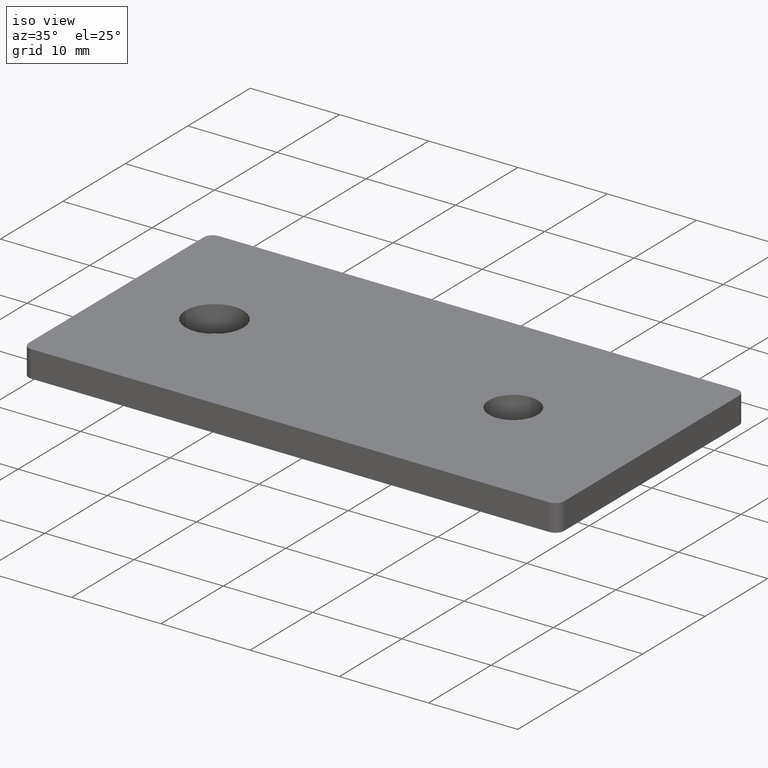
[diagram: clean part render]
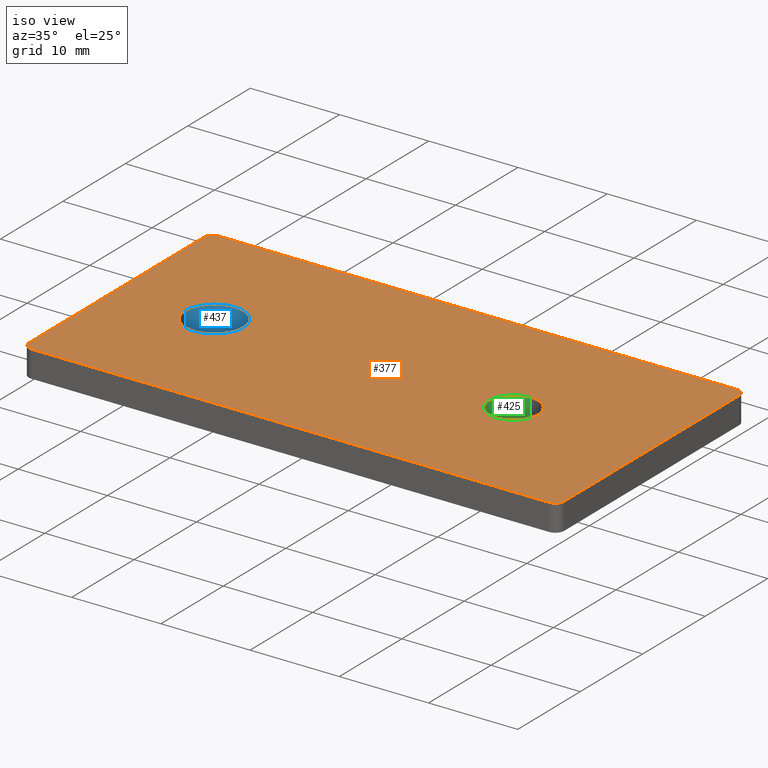
[diagram: same view with three faces highlighted in distinct colors, each labeled with its STEP entity id]
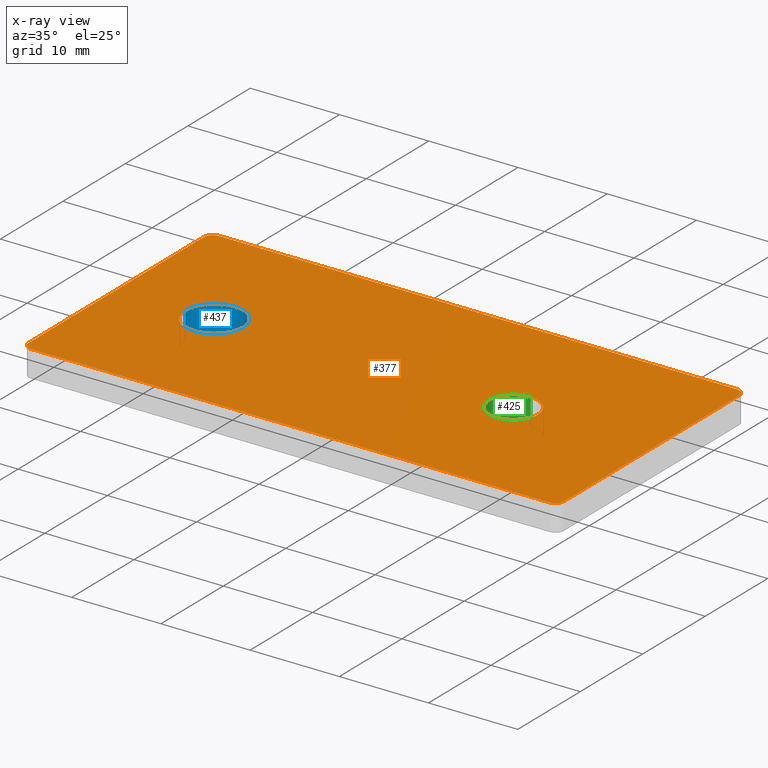
[diagram: x-ray of the same camera — body ghosted, the three highlighted faces saturated]
A machine part, iso view with three faces highlighted in distinct colors.
The next image is the same camera in x-ray (body ghosted, the three faces saturated) — at least one of them is partly hidden behind the body in this view.
Their STEP definitions:

[orange] entity #377 — the highlighted planar face has unit normal (0, 0, 1).
#18=CARTESIAN_POINT('',(-52.250000000000000,3.552714E-015,3.0));
#19=VERTEX_POINT('',#18);
#26=CARTESIAN_POINT('',(-45.750000000000000,3.552714E-015,3.0));
#27=VERTEX_POINT('',#26);
#28=CARTESIAN_POINT('',(-49.0,3.552714E-015,3.0));
#29=DIRECTION('',(0.0,0.0,1.0));
#30=DIRECTION('',(0.0,1.0,0.0));
#31=AXIS2_PLACEMENT_3D('',#28,#29,#30);
#32=CIRCLE('',#31,3.250000000000000);
#33=EDGE_CURVE('',#19,#27,#32,.T.);
#49=CARTESIAN_POINT('',(-15.500000000000004,2.750000000000000,3.0));
#50=VERTEX_POINT('',#49);
#51=CARTESIAN_POINT('',(-15.500000000000004,-2.749999999999996,3.0));
#52=VERTEX_POINT('',#51);
#53=CARTESIAN_POINT('',(-15.500000000000004,3.552714E-015,3.0));
#54=DIRECTION('',(0.0,0.0,-1.0));
#55=DIRECTION('',(0.0,-1.0,0.0));
#56=AXIS2_PLACEMENT_3D('',#53,#54,#55);
#57=CIRCLE('',#56,2.749999999999999);
#58=EDGE_CURVE('',#50,#52,#57,.T.);
#102=CARTESIAN_POINT('',(-59.0,-14.999999999999993,3.0));
#103=VERTEX_POINT('',#102);
#110=CARTESIAN_POINT('',(-60.0,-13.999999999999993,3.0));
#111=VERTEX_POINT('',#110);
#112=CARTESIAN_POINT('',(-59.0,-13.999999999999993,3.0));
#113=DIRECTION('',(0.0,0.0,1.0));
#114=DIRECTION('',(1.0,0.0,0.0));
#115=AXIS2_PLACEMENT_3D('',#112,#113,#114);
#116=CIRCLE('',#115,1.000000000000001);
#117=EDGE_CURVE('',#111,#103,#116,.T.);
#141=CARTESIAN_POINT('',(-1.0,-14.999999999999993,3.0));
#142=VERTEX_POINT('',#141);
#149=CARTESIAN_POINT('',(-59.0,-14.999999999999993,3.0));
#150=DIRECTION('',(1.0,0.0,0.0));
#151=VECTOR('',#150,58.0);
#152=LINE('',#149,#151);
#153=EDGE_CURVE('',#103,#142,#152,.T.);
#173=CARTESIAN_POINT('',(0.0,-13.999999999999993,3.0));
#174=VERTEX_POINT('',#173);
#181=CARTESIAN_POINT('',(-1.0,-13.999999999999993,3.0));
#182=DIRECTION('',(0.0,0.0,1.0));
#183=DIRECTION('',(-1.0,0.0,0.0));
#184=AXIS2_PLACEMENT_3D('',#181,#182,#183);
#185=CIRCLE('',#184,1.000000000000001);
#186=EDGE_CURVE('',#142,#174,#185,.T.);
#205=CARTESIAN_POINT('',(0.0,13.999999999999995,3.0));
#206=VERTEX_POINT('',#205);
#213=CARTESIAN_POINT('',(0.0,-13.999999999999993,3.0));
#214=DIRECTION('',(0.0,1.0,0.0));
#215=VECTOR('',#214,27.999999999999986);
#216=LINE('',#213,#215);
#217=EDGE_CURVE('',#174,#206,#216,.T.);
#237=CARTESIAN_POINT('',(-1.0,14.999999999999996,3.0));
#238=VERTEX_POINT('',#237);
#245=CARTESIAN_POINT('',(-1.0,13.999999999999996,3.0));
#246=DIRECTION('',(0.0,0.0,1.0));
#247=DIRECTION('',(-1.0,0.0,0.0));
#248=AXIS2_PLACEMENT_3D('',#245,#246,#247);
#249=CIRCLE('',#248,1.000000000000001);
#250=EDGE_CURVE('',#206,#238,#249,.T.);
#269=CARTESIAN_POINT('',(-59.0,14.999999999999996,3.0));
#270=VERTEX_POINT('',#269);
#277=CARTESIAN_POINT('',(-1.0,14.999999999999996,3.0));
#278=DIRECTION('',(-1.0,0.0,0.0));
#279=VECTOR('',#278,58.0);
#280=LINE('',#277,#279);
#281=EDGE_CURVE('',#238,#270,#280,.T.);
#301=CARTESIAN_POINT('',(-60.0,13.999999999999998,3.0));
#302=VERTEX_POINT('',#301);
#309=CARTESIAN_POINT('',(-59.0,13.999999999999996,3.0));
#310=DIRECTION('',(0.0,0.0,1.0));
#311=DIRECTION('',(1.0,0.0,0.0));
#312=AXIS2_PLACEMENT_3D('',#309,#310,#311);
#313=CIRCLE('',#312,1.000000000000001);
#314=EDGE_CURVE('',#270,#302,#313,.T.);
#332=CARTESIAN_POINT('',(-60.0,13.999999999999998,3.0));
#333=DIRECTION('',(0.0,-1.0,0.0));
#334=VECTOR('',#333,27.999999999999993);
#335=LINE('',#332,#334);
#336=EDGE_CURVE('',#302,#111,#335,.T.);
#342=CARTESIAN_POINT('',(-63.0,-16.499999999999993,3.0));
#343=DIRECTION('',(0.0,0.0,1.0));
#344=DIRECTION('',(1.0,0.0,0.0));
#345=AXIS2_PLACEMENT_3D('',#342,#343,#344);
#346=PLANE('',#345);
#347=ORIENTED_EDGE('',*,*,#117,.T.);
#348=ORIENTED_EDGE('',*,*,#153,.T.);
#349=ORIENTED_EDGE('',*,*,#186,.T.);
#350=ORIENTED_EDGE('',*,*,#217,.T.);
#351=ORIENTED_EDGE('',*,*,#250,.T.);
#352=ORIENTED_EDGE('',*,*,#281,.T.);
#353=ORIENTED_EDGE('',*,*,#314,.T.);
#354=ORIENTED_EDGE('',*,*,#336,.T.);
#355=EDGE_LOOP('',(#347,#348,#349,#350,#351,#352,#353,#354));
#356=FACE_OUTER_BOUND('',#355,.T.);
#357=CARTESIAN_POINT('',(-15.500000000000004,3.552714E-015,3.0));
#358=DIRECTION('',(0.0,0.0,-1.0));
#359=DIRECTION('',(0.0,-1.0,0.0));
#360=AXIS2_PLACEMENT_3D('',#357,#358,#359);
#361=CIRCLE('',#360,2.749999999999999);
#362=EDGE_CURVE('',#52,#50,#361,.T.);
#363=ORIENTED_EDGE('',*,*,#362,.T.);
#364=ORIENTED_EDGE('',*,*,#58,.T.);
#365=EDGE_LOOP('',(#363,#364));
#366=FACE_BOUND('',#365,.T.);
#367=CARTESIAN_POINT('',(-49.0,3.552714E-015,3.0));
#368=DIRECTION('',(0.0,0.0,1.0));
#369=DIRECTION('',(0.0,1.0,0.0));
#370=AXIS2_PLACEMENT_3D('',#367,#368,#369);
#371=CIRCLE('',#370,3.250000000000000);
#372=EDGE_CURVE('',#27,#19,#371,.T.);
#373=ORIENTED_EDGE('',*,*,#372,.F.);
#374=ORIENTED_EDGE('',*,*,#33,.F.);
#375=EDGE_LOOP('',(#373,#374));
#376=FACE_BOUND('',#375,.T.);
#377=ADVANCED_FACE('',(#356,#366,#376),#346,.T.);

[blue] entity #437 — the highlighted cylindrical surface (edge-blend (fillet) strip) has radius 3.25 mm, axis along (0, 0, 1).
#7=CARTESIAN_POINT('',(-52.250000000000000,3.552714E-015,0.0));
#8=VERTEX_POINT('',#7);
#9=CARTESIAN_POINT('',(-45.750000000000000,3.552714E-015,0.0));
#10=VERTEX_POINT('',#9);
#18=CARTESIAN_POINT('',(-52.250000000000000,3.552714E-015,3.0));
#19=VERTEX_POINT('',#18);
#20=CARTESIAN_POINT('',(-52.250000000000000,3.552714E-015,0.0));
#21=DIRECTION('',(0.0,0.0,1.0));
#22=VECTOR('',#21,3.0);
#23=LINE('',#20,#22);
#24=EDGE_CURVE('',#8,#19,#23,.T.);
#26=CARTESIAN_POINT('',(-45.750000000000000,3.552714E-015,3.0));
#27=VERTEX_POINT('',#26);
#35=CARTESIAN_POINT('',(-45.750000000000000,3.552714E-015,0.0));
#36=DIRECTION('',(0.0,0.0,1.0));
#37=VECTOR('',#36,3.0);
#38=LINE('',#35,#37);
#39=EDGE_CURVE('',#10,#27,#38,.T.);
#367=CARTESIAN_POINT('',(-49.0,3.552714E-015,3.0));
#368=DIRECTION('',(0.0,0.0,1.0));
#369=DIRECTION('',(0.0,1.0,0.0));
#370=AXIS2_PLACEMENT_3D('',#367,#368,#369);
#371=CIRCLE('',#370,3.250000000000000);
#372=EDGE_CURVE('',#27,#19,#371,.T.);
#403=CARTESIAN_POINT('',(-49.0,3.552714E-015,0.0));
#404=DIRECTION('',(0.0,0.0,1.0));
#405=DIRECTION('',(1.0,0.0,0.0));
#406=AXIS2_PLACEMENT_3D('',#403,#404,#405);
#407=CIRCLE('',#406,3.250000000000002);
#408=EDGE_CURVE('',#10,#8,#407,.T.);
#426=CARTESIAN_POINT('',(-49.0,0.0,-9.999994E-009));
#427=DIRECTION('',(0.0,0.0,1.0));
#428=DIRECTION('',(0.0,-1.0,0.0));
#429=AXIS2_PLACEMENT_3D('',#426,#427,#428);
#430=CYLINDRICAL_SURFACE('',#429,3.250000000000002);
#431=ORIENTED_EDGE('',*,*,#24,.F.);
#432=ORIENTED_EDGE('',*,*,#408,.F.);
#433=ORIENTED_EDGE('',*,*,#39,.T.);
#434=ORIENTED_EDGE('',*,*,#372,.T.);
#435=EDGE_LOOP('',(#431,#432,#433,#434));
#436=FACE_OUTER_BOUND('',#435,.T.);
#437=ADVANCED_FACE('',(#436),#430,.F.);

[green] entity #425 — the highlighted cylindrical surface (edge-blend (fillet) strip) has radius 2.75 mm, axis along (0, 0, -1).
#49=CARTESIAN_POINT('',(-15.500000000000004,2.750000000000000,3.0));
#50=VERTEX_POINT('',#49);
#51=CARTESIAN_POINT('',(-15.500000000000004,-2.749999999999996,3.0));
#52=VERTEX_POINT('',#51);
#60=CARTESIAN_POINT('',(-15.500000000000004,2.750000000000000,0.0));
#61=VERTEX_POINT('',#60);
#62=CARTESIAN_POINT('',(-15.500000000000004,2.750000000000000,3.0));
#63=DIRECTION('',(0.0,0.0,-1.0));
#64=VECTOR('',#63,3.0);
#65=LINE('',#62,#64);
#66=EDGE_CURVE('',#50,#61,#65,.T.);
#68=CARTESIAN_POINT('',(-15.500000000000004,-2.749999999999996,0.0));
#69=VERTEX_POINT('',#68);
#77=CARTESIAN_POINT('',(-15.500000000000004,-2.749999999999996,3.0));
#78=DIRECTION('',(0.0,0.0,-1.0));
#79=VECTOR('',#78,3.0);
#80=LINE('',#77,#79);
#81=EDGE_CURVE('',#52,#69,#80,.T.);
#357=CARTESIAN_POINT('',(-15.500000000000004,3.552714E-015,3.0));
#358=DIRECTION('',(0.0,0.0,-1.0));
#359=DIRECTION('',(0.0,-1.0,0.0));
#360=AXIS2_PLACEMENT_3D('',#357,#358,#359);
#361=CIRCLE('',#360,2.749999999999999);
#362=EDGE_CURVE('',#52,#50,#361,.T.);
#394=CARTESIAN_POINT('',(-15.500000000000004,3.552714E-015,0.0));
#395=DIRECTION('',(0.0,0.0,1.0));
#396=DIRECTION('',(1.0,0.0,0.0));
#397=AXIS2_PLACEMENT_3D('',#394,#395,#396);
#398=CIRCLE('',#397,2.750000000000003);
#399=EDGE_CURVE('',#61,#69,#398,.T.);
#414=CARTESIAN_POINT('',(-15.500000000000004,3.552714E-015,3.000000010000000));
#415=DIRECTION('',(0.0,0.0,-1.0));
#416=DIRECTION('',(1.0,0.0,0.0));
#417=AXIS2_PLACEMENT_3D('',#414,#415,#416);
#418=CYLINDRICAL_SURFACE('',#417,2.749999999999999);
#419=ORIENTED_EDGE('',*,*,#66,.F.);
#420=ORIENTED_EDGE('',*,*,#362,.F.);
#421=ORIENTED_EDGE('',*,*,#81,.T.);
#422=ORIENTED_EDGE('',*,*,#399,.F.);
#423=EDGE_LOOP('',(#419,#420,#421,#422));
#424=FACE_OUTER_BOUND('',#423,.T.);
#425=ADVANCED_FACE('',(#424),#418,.F.);